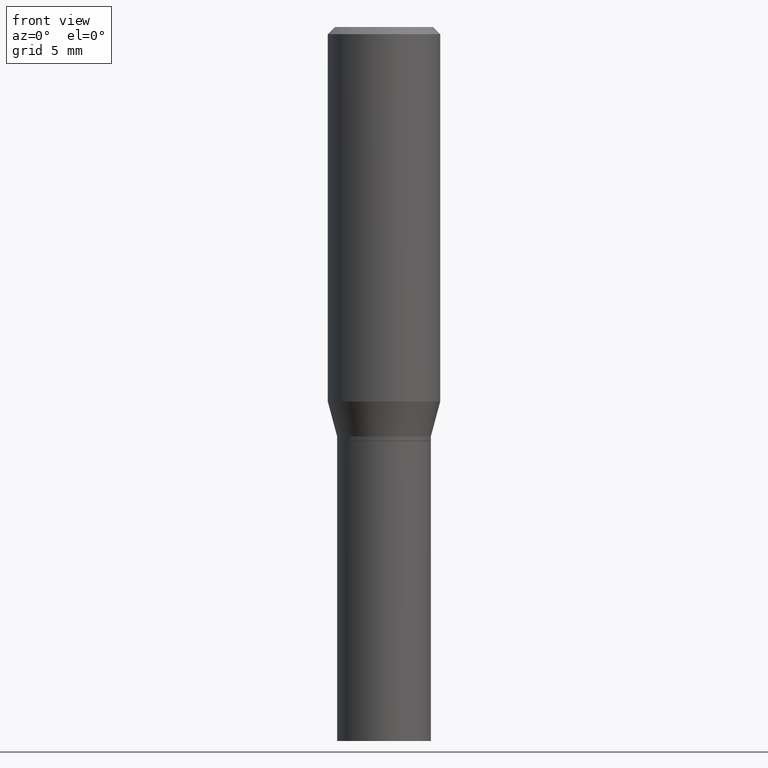
[diagram: clean part render]
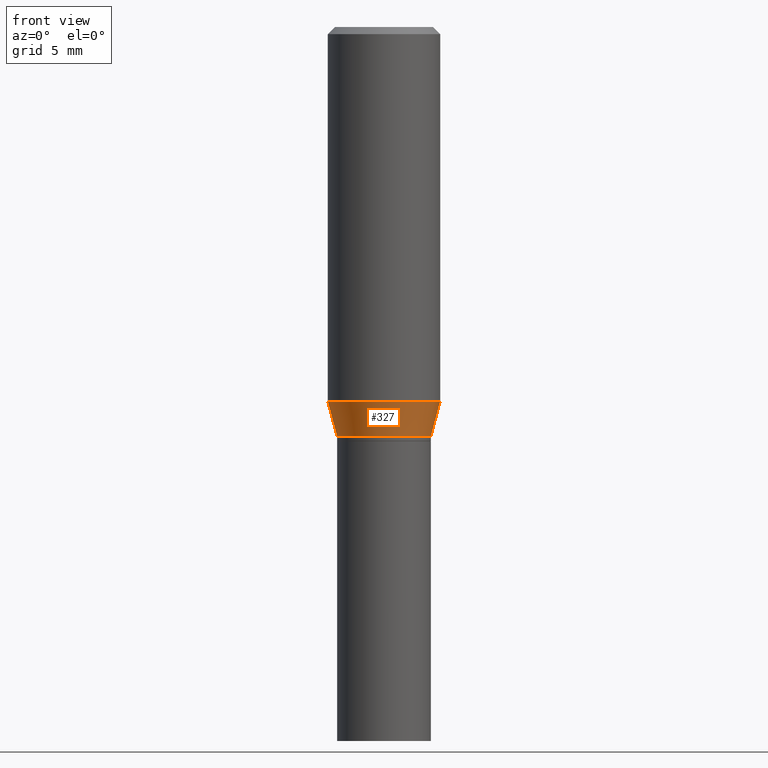
[diagram: same view with one face highlighted and labeled with its STEP entity id]
A machine part, front view. The second image highlights one B-rep face of the part: STEP entity #327.
In plain terms, the highlighted conical surface has half-angle 15 deg.
Its self-contained STEP definition (entity closure, byte-faithful):
#15 = VERTEX_POINT ( 'NONE', #115 ) ;
#30 = VECTOR ( 'NONE', #396, 39.37007874015748143 ) ;
#62 = DIRECTION ( 'NONE',  ( -2.445468806185136597E-29, 3.491481338843145583E-15, 1.000000000000000000 ) ) ;
#68 = CARTESIAN_POINT ( 'NONE',  ( -0.1180999999999999966, -1.907825048614074518E-15, -0.7867652016312725038 ) ) ;
#69 = CARTESIAN_POINT ( 'NONE',  ( 2.103347720199836269E-29, -3.003023099538989951E-15, -0.8601000000000000867 ) ) ;
#106 = LINE ( 'NONE', #325, #30 ) ;
#110 = DIRECTION ( 'NONE',  ( 1.000000000000000000, -6.982962677686267499E-15, 0.000000000000000000 ) ) ;
#115 = CARTESIAN_POINT ( 'NONE',  ( 0.1180999999999999966, -3.571663911781501372E-15, -0.7867652016312725038 ) ) ;
#145 = ORIENTED_EDGE ( 'NONE', *, *, #370, .F. ) ;
#153 = AXIS2_PLACEMENT_3D ( 'NONE', #69, #62, #288 ) ;
#169 = EDGE_CURVE ( 'NONE', #277, #398, #106, .T. ) ;
#171 = CARTESIAN_POINT ( 'NONE',  ( 0.09845000000000017626, -3.690495775157203695E-15, -0.8601000000000000867 ) ) ;
#180 = EDGE_CURVE ( 'NONE', #218, #15, #205, .T. ) ;
#186 = ORIENTED_EDGE ( 'NONE', *, *, #169, .F. ) ;
#191 = VECTOR ( 'NONE', #210, 39.37007874015748143 ) ;
#205 = LINE ( 'NONE', #365, #191 ) ;
#209 = ORIENTED_EDGE ( 'NONE', *, *, #180, .T. ) ;
#210 = DIRECTION ( 'NONE',  ( 0.2588190451025215166, 1.565188264969620784E-15, 0.9659258262890679791 ) ) ;
#215 = DIRECTION ( 'NONE',  ( -2.445468806185136597E-29, 3.491481338843145583E-15, 1.000000000000000000 ) ) ;
#218 = VERTEX_POINT ( 'NONE', #171 ) ;
#245 = FACE_OUTER_BOUND ( 'NONE', #265, .T. ) ;
#260 = AXIS2_PLACEMENT_3D ( 'NONE', #322, #215, #110 ) ;
#265 = EDGE_LOOP ( 'NONE', ( #186, #301, #209, #145 ) ) ;
#266 = CONICAL_SURFACE ( 'NONE', #153, 0.09845000000000017626, 0.2617993877991502405 ) ;
#277 = VERTEX_POINT ( 'NONE', #286 ) ;
#286 = CARTESIAN_POINT ( 'NONE',  ( -0.09845000000000017626, -2.105659412398621996E-15, -0.8601000000000000867 ) ) ;
#288 = DIRECTION ( 'NONE',  ( 1.000000000000000000, -6.982962677686267499E-15, 0.000000000000000000 ) ) ;
#292 = CARTESIAN_POINT ( 'NONE',  ( 1.924009758381236534E-29, -2.746976019546752715E-15, -0.7867652016312725038 ) ) ;
#301 = ORIENTED_EDGE ( 'NONE', *, *, #345, .T. ) ;
#316 = CIRCLE ( 'NONE', #361, 0.1180999999999999966 ) ;
#322 = CARTESIAN_POINT ( 'NONE',  ( 2.103347720199836269E-29, -3.003023099538989951E-15, -0.8601000000000000867 ) ) ;
#325 = CARTESIAN_POINT ( 'NONE',  ( -0.09845000000000017626, -2.303493776183169474E-15, -0.8601000000000000867 ) ) ;
#327 = ADVANCED_FACE ( 'NONE', ( #245 ), #266, .T. ) ;
#345 = EDGE_CURVE ( 'NONE', #277, #218, #456, .T. ) ;
#361 = AXIS2_PLACEMENT_3D ( 'NONE', #292, #429, #457 ) ;
#365 = CARTESIAN_POINT ( 'NONE',  ( 0.09845000000000017626, -3.690495775157203695E-15, -0.8601000000000000867 ) ) ;
#370 = EDGE_CURVE ( 'NONE', #398, #15, #316, .T. ) ;
#396 = DIRECTION ( 'NONE',  ( -0.2588190451025215166, 5.211531920934551042E-15, 0.9659258262890679791 ) ) ;
#398 = VERTEX_POINT ( 'NONE', #68 ) ;
#429 = DIRECTION ( 'NONE',  ( -2.445468806185136597E-29, 3.491481338843145583E-15, 1.000000000000000000 ) ) ;
#456 = CIRCLE ( 'NONE', #260, 0.09845000000000017626 ) ;
#457 = DIRECTION ( 'NONE',  ( 1.000000000000000000, -6.982962677686269077E-15, 0.000000000000000000 ) ) ;